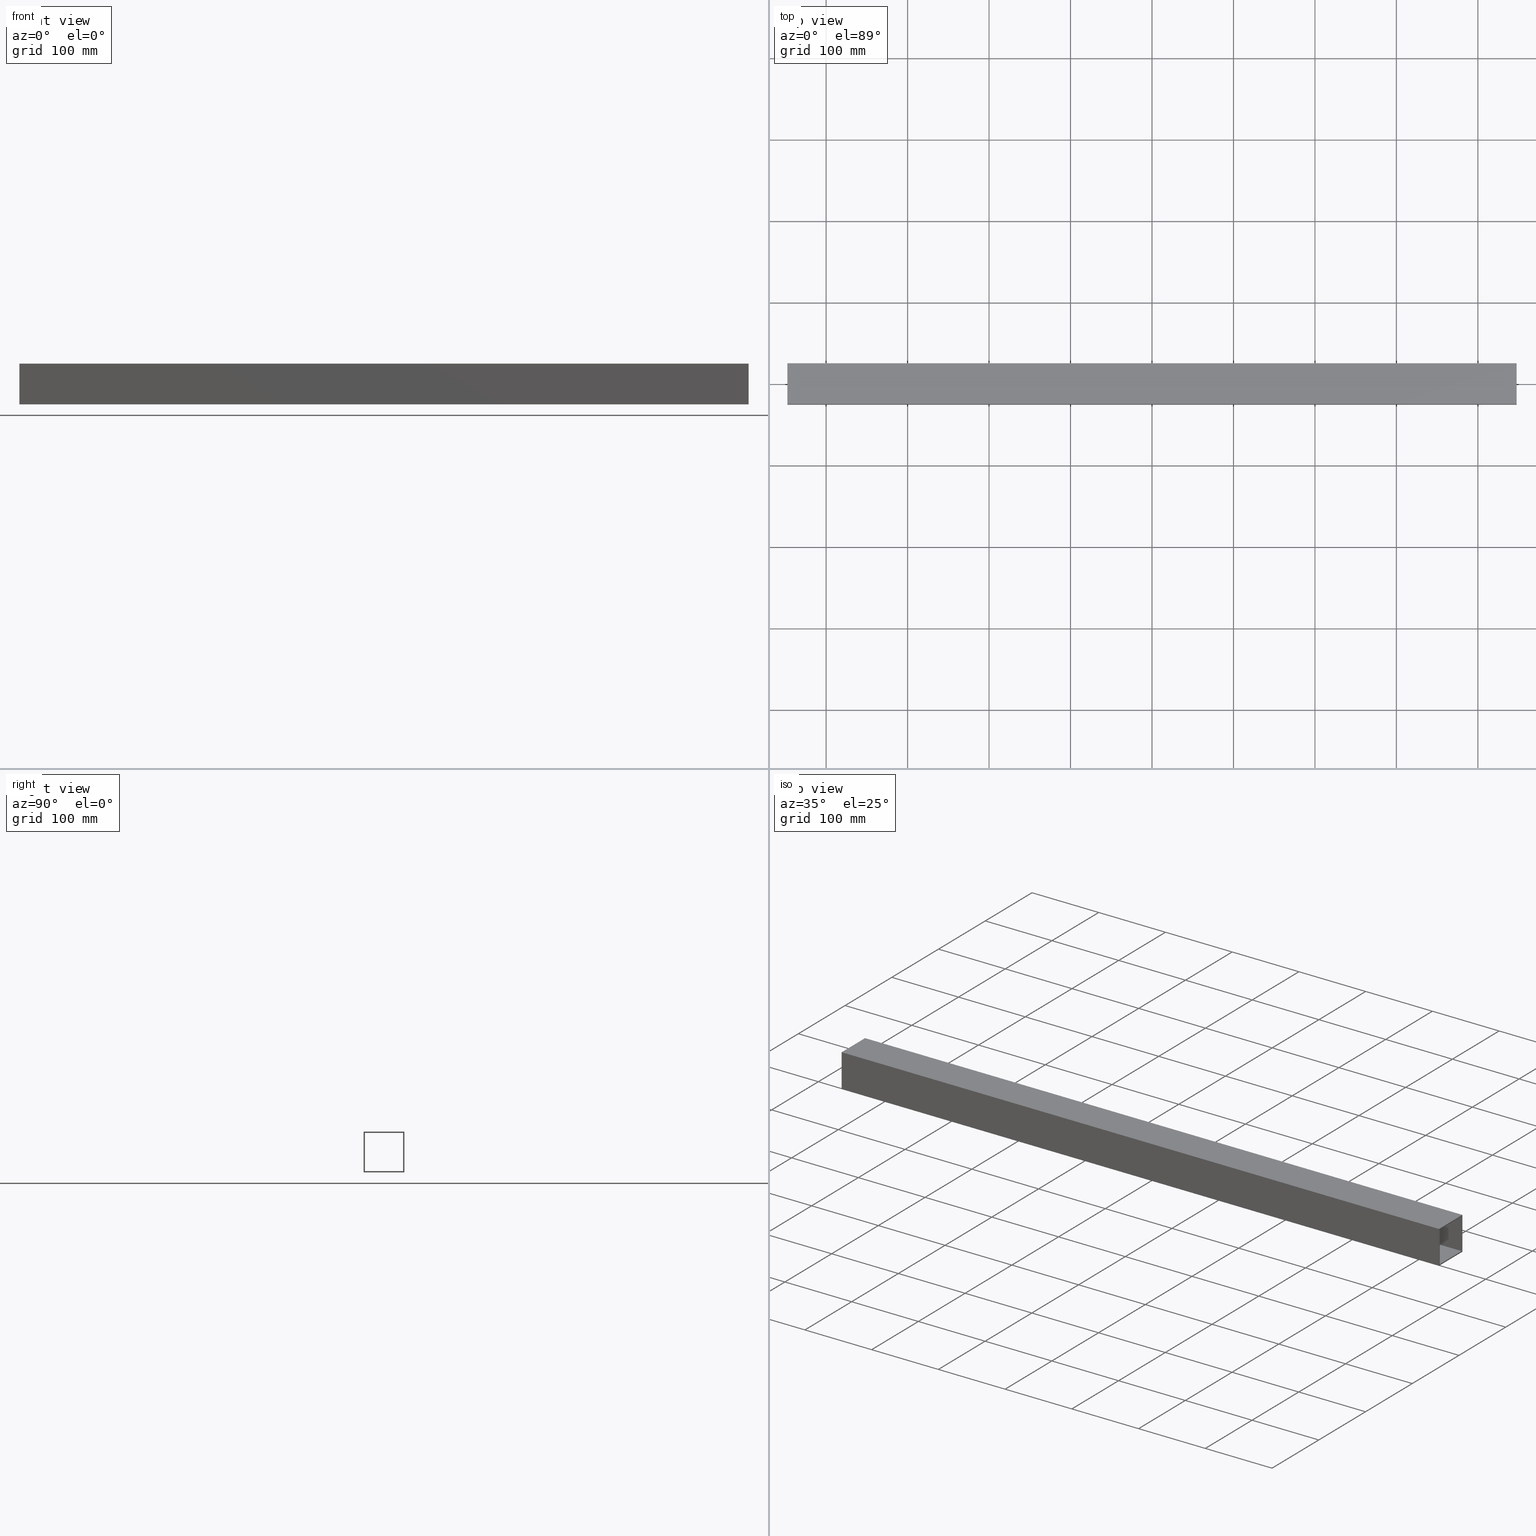
[diagram: canonical four-view strip — front | top / right | iso, engineering-drawing reading convention]
A machine part, canonical four-view strip (front | top / right | iso — engineering-drawing reading convention). The complete STEP part file that produces these views, byte-faithful:
ISO-10303-21;
HEADER;
FILE_DESCRIPTION (( 'STEP AP203' ),
    '1' );
FILE_NAME ('3959-10-15_REV_.step',
    '2025-09-17T09:09:21',
    ( '' ),
    ( '' ),
    'SwSTEP 2.0',
    'SolidWorks 2024',
    '' );
FILE_SCHEMA (( 'CONFIG_CONTROL_DESIGN' ));
ENDSEC;

DATA;
#1 = CARTESIAN_POINT ( 'NONE',  ( -447.5000000000000000, 23.39999999999998437, 23.39999999999991687 ) ) ;
#2 = EDGE_LOOP ( 'NONE', ( #86, #176, #343, #348 ) ) ;
#3 = EDGE_CURVE ( 'NONE', #319, #297, #16, .T. ) ;
#4 = FACE_OUTER_BOUND ( 'NONE', #65, .T. ) ;
#5 = ORIENTED_EDGE ( 'NONE', *, *, #320, .T. ) ;
#6 = DIRECTION ( 'NONE',  ( 0.000000000000000000, 0.000000000000000000, 1.000000000000000000 ) ) ;
#7 = APPLICATION_PROTOCOL_DEFINITION ( 'international standard', 'config_control_design', 1994, #145 ) ;
#8 = ORIENTED_EDGE ( 'NONE', *, *, #140, .F. ) ;
#9 = EDGE_CURVE ( 'NONE', #261, #232, #356, .T. ) ;
#10 = DATE_AND_TIME ( #326, #183 ) ;
#11 = ORIENTED_EDGE ( 'NONE', *, *, #277, .T. ) ;
#12 = EDGE_CURVE ( 'NONE', #158, #178, #101, .T. ) ;
#13 = ORIENTED_EDGE ( 'NONE', *, *, #275, .T. ) ;
#14 = COORDINATED_UNIVERSAL_TIME_OFFSET ( 10, 0, .AHEAD. ) ;
#15 = CC_DESIGN_APPROVAL ( #295, ( #347 ) ) ;
#16 = LINE ( 'NONE', #189, #75 ) ;
#17 = VERTEX_POINT ( 'NONE', #329 ) ;
#18 = CARTESIAN_POINT ( 'NONE',  ( -447.5000000000000000, -23.40000000000001634, 23.40000000000008740 ) ) ;
#19 = CARTESIAN_POINT ( 'NONE',  ( -447.5000000000000000, 23.39999999999981029, -23.40000000000008384 ) ) ;
#20 = VECTOR ( 'NONE', #156, 1000.000000000000000 ) ;
#21 = DIRECTION ( 'NONE',  ( 0.000000000000000000, -3.469446951953613006E-15, -1.000000000000000000 ) ) ;
#22 = EDGE_CURVE ( 'NONE', #262, #286, #72, .T. ) ;
#23 = DIRECTION ( 'NONE',  ( -9.772348340399519194E-31, 3.191891195797322293E-15, 1.000000000000000000 ) ) ;
#24 = CARTESIAN_POINT ( 'NONE',  ( -447.5000000000000000, 25.00000000000000711, 24.99999999999991829 ) ) ;
#25 = LOCAL_TIME ( 19, 9, 21.00000000000000000, #188 ) ;
#26 = DIRECTION ( 'NONE',  ( 3.061616997868382648E-16, -1.000000000000000000, 3.929074539605589797E-15 ) ) ;
#27 = DIRECTION ( 'NONE',  ( 0.000000000000000000, -1.000000000000000000, 3.191891195797322293E-15 ) ) ;
#28 = APPROVAL ( #244, 'UNSPECIFIED' ) ;
#29 = CARTESIAN_POINT ( 'NONE',  ( -447.5000000000000000, 25.00000000000000711, 24.99999999999991829 ) ) ;
#30 = ORIENTED_EDGE ( 'NONE', *, *, #345, .T. ) ;
#31 = DIRECTION ( 'NONE',  ( 0.000000000000000000, -1.000000000000000000, 3.632540612088185364E-15 ) ) ;
#32 = DIRECTION ( 'NONE',  ( 1.000000000000000000, 3.061616997868382648E-16, -0.000000000000000000 ) ) ;
#33 = ORIENTED_EDGE ( 'NONE', *, *, #9, .T. ) ;
#34 = PERSON_AND_ORGANIZATION ( #154, #95 ) ;
#35 = VECTOR ( 'NONE', #363, 1000.000000000000000 ) ;
#36 = PERSON_AND_ORGANIZATION_ROLE ( 'classification_officer' ) ;
#37 = EDGE_LOOP ( 'NONE', ( #147, #58, #121, #239 ) ) ;
#38 = SHAPE_DEFINITION_REPRESENTATION ( #191, #122 ) ;
#39 = CARTESIAN_POINT ( 'NONE',  ( -447.5000000000000000, 23.39999999999998437, 23.39999999999991687 ) ) ;
#40 = APPROVAL_DATE_TIME ( #43, #224 ) ;
#41 = ORIENTED_EDGE ( 'NONE', *, *, #22, .F. ) ;
#42 = CC_DESIGN_PERSON_AND_ORGANIZATION_ASSIGNMENT ( #34, #150, ( #314 ) ) ;
#43 = DATE_AND_TIME ( #298, #299 ) ;
#44 = VECTOR ( 'NONE', #371, 1000.000000000000000 ) ;
#45 = EDGE_LOOP ( 'NONE', ( #133, #325, #292, #236 ) ) ;
#46 = COORDINATED_UNIVERSAL_TIME_OFFSET ( 10, 0, .AHEAD. ) ;
#47 = FACE_BOUND ( 'NONE', #303, .T. ) ;
#48 = ORIENTED_EDGE ( 'NONE', *, *, #368, .F. ) ;
#49 = CARTESIAN_POINT ( 'NONE',  ( -447.5000000000000000, -23.40000000000001634, 23.40000000000008740 ) ) ;
#50 = EDGE_CURVE ( 'NONE', #297, #232, #333, .T. ) ;
#51 = DIRECTION ( 'NONE',  ( 0.000000000000000000, -1.000000000000000000, 3.929074539605588219E-15 ) ) ;
#52 = PLANE ( 'NONE',  #264 ) ;
#53 = LINE ( 'NONE', #144, #175 ) ;
#54 = AXIS2_PLACEMENT_3D ( 'NONE', #222, #23, #309 ) ;
#55 = CARTESIAN_POINT ( 'NONE',  ( -447.5000000000000000, 23.39999999999981029, -23.40000000000008384 ) ) ;
#56 = ADVANCED_FACE ( 'NONE', ( #163 ), #272, .T. ) ;
#57 = CARTESIAN_POINT ( 'NONE',  ( -447.5000000000000000, 25.00000000000000711, 24.99999999999991829 ) ) ;
#58 = ORIENTED_EDGE ( 'NONE', *, *, #126, .F. ) ;
#59 = EDGE_LOOP ( 'NONE', ( #13, #92, #208, #269 ) ) ;
#60 = VECTOR ( 'NONE', #317, 1000.000000000000000 ) ;
#61 = ORIENTED_EDGE ( 'NONE', *, *, #320, .F. ) ;
#62 = CARTESIAN_POINT ( 'NONE',  ( 447.5000000000000000, -23.39999999999992752, -23.39999999999989910 ) ) ;
#63 = ORIENTED_EDGE ( 'NONE', *, *, #99, .T. ) ;
#64 = DIRECTION ( 'NONE',  ( 1.000000000000000000, 3.061616997868382648E-16, -0.000000000000000000 ) ) ;
#65 = EDGE_LOOP ( 'NONE', ( #294, #98, #33, #125 ) ) ;
#66 = CALENDAR_DATE ( 2025, 17, 9 ) ;
#67 = MANIFOLD_SOLID_BREP ( 'Shs-sq edge 50X1.6 UA8007 SHS(1)', #289 ) ;
#68 = DIRECTION ( 'NONE',  ( 0.000000000000000000, 0.000000000000000000, 1.000000000000000000 ) ) ;
#69 = SECURITY_CLASSIFICATION_LEVEL ( 'unclassified' ) ;
#70 = FACE_OUTER_BOUND ( 'NONE', #59, .T. ) ;
#71 = DATE_AND_TIME ( #66, #131 ) ;
#72 = LINE ( 'NONE', #307, #288 ) ;
#73 = DIRECTION ( 'NONE',  ( 0.000000000000000000, -3.469446951953613400E-15, -1.000000000000000000 ) ) ;
#74 = DIRECTION ( 'NONE',  ( 0.000000000000000000, -3.469446951953611033E-15, -1.000000000000000000 ) ) ;
#75 = VECTOR ( 'NONE', #73, 1000.000000000000000 ) ;
#76 = DIRECTION ( 'NONE',  ( 0.000000000000000000, -1.000000000000000000, 3.816391647148972452E-15 ) ) ;
#77 = DIRECTION ( 'NONE',  ( 3.061616997868382648E-16, -1.000000000000000000, 3.706674093967536473E-15 ) ) ;
#78 = CC_DESIGN_PERSON_AND_ORGANIZATION_ASSIGNMENT ( #301, #181, ( #347 ) ) ;
#79 = FACE_OUTER_BOUND ( 'NONE', #230, .T. ) ;
#80 = DIRECTION ( 'NONE',  ( 1.000000000000000000, 3.061616997868382648E-16, -0.000000000000000000 ) ) ;
#81 = AXIS2_PLACEMENT_3D ( 'NONE', #83, #256, #201 ) ;
#82 = LINE ( 'NONE', #227, #253 ) ;
#83 = CARTESIAN_POINT ( 'NONE',  ( -447.5000000000000000, -25.00000000000003553, 25.00000000000011013 ) ) ;
#84 = ORIENTED_EDGE ( 'NONE', *, *, #345, .F. ) ;
#85 =( NAMED_UNIT ( * ) SI_UNIT ( $, .STERADIAN. ) SOLID_ANGLE_UNIT ( ) );
#86 = ORIENTED_EDGE ( 'NONE', *, *, #287, .T. ) ;
#87 = VECTOR ( 'NONE', #212, 1000.000000000000000 ) ;
#88 = VECTOR ( 'NONE', #284, 1000.000000000000000 ) ;
#89 = MECHANICAL_CONTEXT ( 'NONE', #372, 'mechanical' ) ;
#90 = VERTEX_POINT ( 'NONE', #184 ) ;
#91 = ADVANCED_FACE ( 'NONE', ( #136, #47 ), #268, .T. ) ;
#92 = ORIENTED_EDGE ( 'NONE', *, *, #287, .F. ) ;
#93 = CC_DESIGN_PERSON_AND_ORGANIZATION_ASSIGNMENT ( #353, #273, ( #148 ) ) ;
#94 = CARTESIAN_POINT ( 'NONE',  ( 447.5000000000000000, 0.000000000000000000, 0.000000000000000000 ) ) ;
#95 = ORGANIZATION ( 'UNSPECIFIED', 'UNSPECIFIED', '' ) ;
#96 = DIRECTION ( 'NONE',  ( 0.000000000000000000, -1.000000000000000000, 3.816391647148972452E-15 ) ) ;
#97 = APPROVAL_ROLE ( '' ) ;
#98 = ORIENTED_EDGE ( 'NONE', *, *, #194, .F. ) ;
#99 = EDGE_CURVE ( 'NONE', #118, #286, #351, .T. ) ;
#100 = DATE_AND_TIME ( #238, #310 ) ;
#101 = LINE ( 'NONE', #39, #20 ) ;
#102 = VECTOR ( 'NONE', #27, 1000.000000000000000 ) ;
#103 = VERTEX_POINT ( 'NONE', #248 ) ;
#104 = DIRECTION ( 'NONE',  ( 0.000000000000000000, -1.000000000000000000, 3.632540612088185364E-15 ) ) ;
#105 = CARTESIAN_POINT ( 'NONE',  ( -447.5000000000000000, 23.39999999999998437, 23.39999999999991687 ) ) ;
#106 = VECTOR ( 'NONE', #80, 1000.000000000000000 ) ;
#107 = CARTESIAN_POINT ( 'NONE',  ( 447.5000000000000000, 23.40000000000025793, 23.39999999999991687 ) ) ;
#108 = FACE_OUTER_BOUND ( 'NONE', #2, .T. ) ;
#109 = DIRECTION ( 'NONE',  ( 1.000000000000000000, 3.061616997868382648E-16, -0.000000000000000000 ) ) ;
#110 = ADVANCED_FACE ( 'NONE', ( #70, #190 ), #185, .F. ) ;
#111 = LINE ( 'NONE', #115, #102 ) ;
#112 = VECTOR ( 'NONE', #302, 1000.000000000000000 ) ;
#113 = VECTOR ( 'NONE', #296, 1000.000000000000000 ) ;
#114 = ADVANCED_FACE ( 'NONE', ( #280 ), #52, .F. ) ;
#115 = CARTESIAN_POINT ( 'NONE',  ( 447.5000000000000000, 25.00000000000011013, -25.00000000000009237 ) ) ;
#116 = VERTEX_POINT ( 'NONE', #335 ) ;
#117 = CARTESIAN_POINT ( 'NONE',  ( -447.5000000000000000, 24.99999999999983658, -25.00000000000009237 ) ) ;
#118 = VERTEX_POINT ( 'NONE', #49 ) ;
#119 = DIRECTION ( 'NONE',  ( 1.000000000000000000, 0.000000000000000000, 0.000000000000000000 ) ) ;
#120 = CC_DESIGN_DATE_AND_TIME_ASSIGNMENT ( #71, #304, ( #347 ) ) ;
#121 = ORIENTED_EDGE ( 'NONE', *, *, #3, .F. ) ;
#122 = ADVANCED_BREP_SHAPE_REPRESENTATION ( '3959-10-15_REV_', ( #67, #306 ), #258 ) ;
#123 =( NAMED_UNIT ( * ) PLANE_ANGLE_UNIT ( ) SI_UNIT ( $, .RADIAN. ) );
#124 = ORIENTED_EDGE ( 'NONE', *, *, #99, .F. ) ;
#125 = ORIENTED_EDGE ( 'NONE', *, *, #354, .T. ) ;
#126 = EDGE_CURVE ( 'NONE', #297, #103, #250, .T. ) ;
#127 = PERSON_AND_ORGANIZATION ( #154, #95 ) ;
#128 = VERTEX_POINT ( 'NONE', #139 ) ;
#129 = AXIS2_PLACEMENT_3D ( 'NONE', #216, #246, #96 ) ;
#130 = CC_DESIGN_SECURITY_CLASSIFICATION ( #355, ( #148 ) ) ;
#131 = LOCAL_TIME ( 19, 9, 21.00000000000000000, #155 ) ;
#132 = APPROVAL_STATUS ( 'not_yet_approved' ) ;
#133 = ORIENTED_EDGE ( 'NONE', *, *, #167, .F. ) ;
#134 = DIRECTION ( 'NONE',  ( 0.000000000000000000, -1.000000000000000000, 3.929074539605588219E-15 ) ) ;
#135 = COORDINATED_UNIVERSAL_TIME_OFFSET ( 10, 0, .AHEAD. ) ;
#136 = FACE_OUTER_BOUND ( 'NONE', #205, .T. ) ;
#137 = CC_DESIGN_APPROVAL ( #224, ( #148 ) ) ;
#138 = CARTESIAN_POINT ( 'NONE',  ( -447.5000000000000000, -25.00000000000003553, 25.00000000000011013 ) ) ;
#139 = CARTESIAN_POINT ( 'NONE',  ( 447.5000000000000000, 25.00000000000028066, 24.99999999999991829 ) ) ;
#140 = EDGE_CURVE ( 'NONE', #286, #331, #53, .T. ) ;
#141 = FACE_OUTER_BOUND ( 'NONE', #45, .T. ) ;
#142 = PLANE ( 'NONE',  #54 ) ;
#143 = APPROVAL_PERSON_ORGANIZATION ( #211, #224, #213 ) ;
#144 = CARTESIAN_POINT ( 'NONE',  ( -447.5000000000000000, -23.40000000000020108, -23.39999999999989910 ) ) ;
#145 = APPLICATION_CONTEXT ( 'configuration controlled 3d designs of mechanical parts and assemblies' ) ;
#146 = CARTESIAN_POINT ( 'NONE',  ( 447.5000000000000000, 23.40000000000025793, 23.39999999999991687 ) ) ;
#147 = ORIENTED_EDGE ( 'NONE', *, *, #352, .T. ) ;
#148 = PRODUCT_DEFINITION_FORMATION_WITH_SPECIFIED_SOURCE ( 'ANY', '', #314, .NOT_KNOWN. ) ;
#149 = ORIENTED_EDGE ( 'NONE', *, *, #370, .T. ) ;
#150 = PERSON_AND_ORGANIZATION_ROLE ( 'design_owner' ) ;
#151 = ORIENTED_EDGE ( 'NONE', *, *, #242, .F. ) ;
#152 = PERSON_AND_ORGANIZATION ( #154, #95 ) ;
#153 = ORIENTED_EDGE ( 'NONE', *, *, #237, .F. ) ;
#154 = PERSON ( 'UNSPECIFIED', 'UNSPECIFIED', 'UNSPECIFIED', ('UNSPECIFIED'), ('UNSPECIFIED'), ('UNSPECIFIED') ) ;
#155 = COORDINATED_UNIVERSAL_TIME_OFFSET ( 10, 0, .AHEAD. ) ;
#156 = DIRECTION ( 'NONE',  ( 1.000000000000000000, 3.061616997868382648E-16, -0.000000000000000000 ) ) ;
#157 = DESIGN_CONTEXT ( 'detailed design', #145, 'design' ) ;
#158 = VERTEX_POINT ( 'NONE', #223 ) ;
#159 = CC_DESIGN_DATE_AND_TIME_ASSIGNMENT ( #271, #330, ( #355 ) ) ;
#160 = ADVANCED_FACE ( 'NONE', ( #283 ), #192, .F. ) ;
#161 = PERSON_AND_ORGANIZATION_ROLE ( 'design_supplier' ) ;
#162 = ORIENTED_EDGE ( 'NONE', *, *, #50, .T. ) ;
#163 = FACE_OUTER_BOUND ( 'NONE', #259, .T. ) ;
#164 = CARTESIAN_POINT ( 'NONE',  ( -447.5000000000000000, 24.99999999999983658, -25.00000000000009237 ) ) ;
#165 = VECTOR ( 'NONE', #285, 1000.000000000000000 ) ;
#166 = DIRECTION ( 'NONE',  ( 3.061616997868382648E-16, -1.000000000000000000, 3.469446951953613006E-15 ) ) ;
#167 = EDGE_CURVE ( 'NONE', #178, #116, #169, .T. ) ;
#168 = DIRECTION ( 'NONE',  ( 0.000000000000000000, -3.929074539605589797E-15, -1.000000000000000000 ) ) ;
#169 = LINE ( 'NONE', #107, #60 ) ;
#170 = CARTESIAN_POINT ( 'NONE',  ( -447.5000000000000000, -23.40000000000001634, 23.40000000000008740 ) ) ;
#171 = CARTESIAN_POINT ( 'NONE',  ( -447.5000000000000000, -25.00000000000003553, 25.00000000000011013 ) ) ;
#172 = LINE ( 'NONE', #231, #291 ) ;
#173 = ORIENTED_EDGE ( 'NONE', *, *, #3, .T. ) ;
#174 = DIRECTION ( 'NONE',  ( 0.000000000000000000, -1.000000000000000000, 3.632540612088185364E-15 ) ) ;
#175 = VECTOR ( 'NONE', #366, 1000.000000000000000 ) ;
#176 = ORIENTED_EDGE ( 'NONE', *, *, #354, .F. ) ;
#177 = APPLICATION_PROTOCOL_DEFINITION ( 'international standard', 'config_control_design', 1994, #372 ) ;
#178 = VERTEX_POINT ( 'NONE', #365 ) ;
#179 = CARTESIAN_POINT ( 'NONE',  ( 447.5000000000000000, 23.40000000000008384, -23.40000000000008384 ) ) ;
#180 = VERTEX_POINT ( 'NONE', #254 ) ;
#181 = PERSON_AND_ORGANIZATION_ROLE ( 'creator' ) ;
#182 = EDGE_CURVE ( 'NONE', #128, #90, #281, .T. ) ;
#183 = LOCAL_TIME ( 19, 9, 21.00000000000000000, #46 ) ;
#184 = CARTESIAN_POINT ( 'NONE',  ( 447.5000000000000000, -24.99999999999976197, 25.00000000000011013 ) ) ;
#185 = PLANE ( 'NONE',  #316 ) ;
#186 = ADVANCED_FACE ( 'NONE', ( #79 ), #252, .T. ) ;
#187 = DIRECTION ( 'NONE',  ( 0.000000000000000000, -1.000000000000000000, 3.191891195797322293E-15 ) ) ;
#188 = COORDINATED_UNIVERSAL_TIME_OFFSET ( 10, 0, .AHEAD. ) ;
#189 = CARTESIAN_POINT ( 'NONE',  ( -447.5000000000000000, 25.00000000000000711, 24.99999999999991829 ) ) ;
#190 = FACE_BOUND ( 'NONE', #322, .T. ) ;
#191 = PRODUCT_DEFINITION_SHAPE ( 'NONE', 'NONE',  #347 ) ;
#192 = PLANE ( 'NONE',  #220 ) ;
#193 = DIRECTION ( 'NONE',  ( -1.202932139634835836E-30, 3.929074539605588219E-15, 1.000000000000000000 ) ) ;
#194 = EDGE_CURVE ( 'NONE', #261, #90, #315, .T. ) ;
#195 = CARTESIAN_POINT ( 'NONE',  ( -447.5000000000000000, 25.00000000000000711, 24.99999999999991829 ) ) ;
#196 = LINE ( 'NONE', #195, #204 ) ;
#197 = ADVANCED_FACE ( 'NONE', ( #219 ), #251, .F. ) ;
#198 = LINE ( 'NONE', #55, #35 ) ;
#199 = DIRECTION ( 'NONE',  ( 0.000000000000000000, -1.000000000000000000, 3.929074539605588219E-15 ) ) ;
#200 = ORIENTED_EDGE ( 'NONE', *, *, #194, .T. ) ;
#201 = DIRECTION ( 'NONE',  ( 0.000000000000000000, -3.469446951953611033E-15, -1.000000000000000000 ) ) ;
#202 = ADVANCED_FACE ( 'NONE', ( #108 ), #142, .F. ) ;
#203 = ORIENTED_EDGE ( 'NONE', *, *, #22, .T. ) ;
#204 = VECTOR ( 'NONE', #109, 1000.000000000000000 ) ;
#205 = EDGE_LOOP ( 'NONE', ( #358, #276, #173, #162 ) ) ;
#206 = ORIENTED_EDGE ( 'NONE', *, *, #368, .T. ) ;
#207 = CARTESIAN_POINT ( 'NONE',  ( -447.5000000000000000, 23.39999999999998437, 23.39999999999991687 ) ) ;
#208 = ORIENTED_EDGE ( 'NONE', *, *, #352, .F. ) ;
#209 = DIRECTION ( 'NONE',  ( -1.000000000000000000, -0.000000000000000000, 0.000000000000000000 ) ) ;
#210 = APPROVAL_ROLE ( '' ) ;
#211 = PERSON_AND_ORGANIZATION ( #154, #95 ) ;
#212 = DIRECTION ( 'NONE',  ( 0.000000000000000000, -3.469446951953611033E-15, -1.000000000000000000 ) ) ;
#213 = APPROVAL_ROLE ( '' ) ;
#214 = CC_DESIGN_PERSON_AND_ORGANIZATION_ASSIGNMENT ( #266, #161, ( #148 ) ) ;
#215 = VECTOR ( 'NONE', #74, 1000.000000000000000 ) ;
#216 = CARTESIAN_POINT ( 'NONE',  ( -447.5000000000000000, 25.00000000000000711, 24.99999999999991829 ) ) ;
#217 = LINE ( 'NONE', #334, #215 ) ;
#218 = ADVANCED_FACE ( 'NONE', ( #141 ), #339, .T. ) ;
#219 = FACE_OUTER_BOUND ( 'NONE', #265, .T. ) ;
#220 = AXIS2_PLACEMENT_3D ( 'NONE', #24, #166, #21 ) ;
#221 = CC_DESIGN_PERSON_AND_ORGANIZATION_ASSIGNMENT ( #360, #36, ( #355 ) ) ;
#222 = CARTESIAN_POINT ( 'NONE',  ( -447.5000000000000000, 24.99999999999983658, -25.00000000000009237 ) ) ;
#223 = CARTESIAN_POINT ( 'NONE',  ( -447.5000000000000000, 23.39999999999998437, 23.39999999999991687 ) ) ;
#224 = APPROVAL ( #247, 'UNSPECIFIED' ) ;
#225 = DIRECTION ( 'NONE',  ( 0.000000000000000000, -3.706674093967536473E-15, -1.000000000000000000 ) ) ;
#226 = VECTOR ( 'NONE', #76, 1000.000000000000000 ) ;
#227 = CARTESIAN_POINT ( 'NONE',  ( -447.5000000000000000, -23.40000000000001634, 23.40000000000008740 ) ) ;
#228 = ORIENTED_EDGE ( 'NONE', *, *, #364, .F. ) ;
#229 = LINE ( 'NONE', #207, #249 ) ;
#230 = EDGE_LOOP ( 'NONE', ( #48, #151, #203, #346 ) ) ;
#231 = CARTESIAN_POINT ( 'NONE',  ( -447.5000000000000000, -25.00000000000020961, -24.99999999999993250 ) ) ;
#232 = VERTEX_POINT ( 'NONE', #340 ) ;
#233 = CARTESIAN_POINT ( 'NONE',  ( 447.5000000000000000, -23.39999999999974278, 23.40000000000008740 ) ) ;
#234 = VECTOR ( 'NONE', #187, 1000.000000000000000 ) ;
#235 = CC_DESIGN_APPROVAL ( #28, ( #355 ) ) ;
#236 = ORIENTED_EDGE ( 'NONE', *, *, #242, .T. ) ;
#237 = EDGE_CURVE ( 'NONE', #319, #128, #196, .T. ) ;
#238 = CALENDAR_DATE ( 2025, 17, 9 ) ;
#239 = ORIENTED_EDGE ( 'NONE', *, *, #237, .T. ) ;
#240 = CARTESIAN_POINT ( 'NONE',  ( -447.5000000000000000, -2.740147213092202348E-13, 0.000000000000000000 ) ) ;
#241 = APPROVAL_PERSON_ORGANIZATION ( #127, #295, #97 ) ;
#242 = EDGE_CURVE ( 'NONE', #262, #116, #198, .T. ) ;
#243 = ORIENTED_EDGE ( 'NONE', *, *, #364, .T. ) ;
#244 = APPROVAL_STATUS ( 'not_yet_approved' ) ;
#245 = PRODUCT_RELATED_PRODUCT_CATEGORY ( 'detail', '', ( #314 ) ) ;
#246 = DIRECTION ( 'NONE',  ( -1.168432953743420880E-30, 3.816391647148972452E-15, 1.000000000000000000 ) ) ;
#247 = APPROVAL_STATUS ( 'not_yet_approved' ) ;
#248 = CARTESIAN_POINT ( 'NONE',  ( 447.5000000000000000, 25.00000000000011013, -25.00000000000009237 ) ) ;
#249 = VECTOR ( 'NONE', #174, 1000.000000000000000 ) ;
#250 = LINE ( 'NONE', #282, #336 ) ;
#251 = PLANE ( 'NONE',  #321 ) ;
#252 = PLANE ( 'NONE',  #270 ) ;
#253 = VECTOR ( 'NONE', #64, 1000.000000000000000 ) ;
#254 = CARTESIAN_POINT ( 'NONE',  ( 447.5000000000000000, -23.39999999999974278, 23.40000000000008740 ) ) ;
#255 = DIRECTION ( 'NONE',  ( 1.000000000000000000, 3.061616997868382648E-16, -0.000000000000000000 ) ) ;
#256 = DIRECTION ( 'NONE',  ( 3.061616997868382648E-16, -1.000000000000000000, 3.469446951953611033E-15 ) ) ;
#257 = LINE ( 'NONE', #1, #113 ) ;
#258 =( GEOMETRIC_REPRESENTATION_CONTEXT ( 3 ) GLOBAL_UNCERTAINTY_ASSIGNED_CONTEXT ( ( #312 ) ) GLOBAL_UNIT_ASSIGNED_CONTEXT ( ( #349, #123, #85 ) ) REPRESENTATION_CONTEXT ( 'NONE', 'WORKASPACE' ) );
#259 = EDGE_LOOP ( 'NONE', ( #350, #153, #149, #200 ) ) ;
#260 = CARTESIAN_POINT ( 'NONE',  ( 447.5000000000000000, 25.00000000000028066, 24.99999999999991829 ) ) ;
#261 = VERTEX_POINT ( 'NONE', #171 ) ;
#262 = VERTEX_POINT ( 'NONE', #19 ) ;
#263 = LINE ( 'NONE', #260, #44 ) ;
#264 = AXIS2_PLACEMENT_3D ( 'NONE', #170, #26, #168 ) ;
#265 = EDGE_LOOP ( 'NONE', ( #5, #228, #305, #324 ) ) ;
#266 = PERSON_AND_ORGANIZATION ( #154, #95 ) ;
#267 = APPROVAL_DATE_TIME ( #10, #28 ) ;
#268 = PLANE ( 'NONE',  #278 ) ;
#269 = ORIENTED_EDGE ( 'NONE', *, *, #182, .T. ) ;
#270 = AXIS2_PLACEMENT_3D ( 'NONE', #369, #193, #51 ) ;
#271 = DATE_AND_TIME ( #328, #25 ) ;
#272 = PLANE ( 'NONE',  #129 ) ;
#273 = PERSON_AND_ORGANIZATION_ROLE ( 'creator' ) ;
#274 = DIRECTION ( 'NONE',  ( -1.000000000000000000, -0.000000000000000000, 0.000000000000000000 ) ) ;
#275 = EDGE_CURVE ( 'NONE', #90, #17, #217, .T. ) ;
#276 = ORIENTED_EDGE ( 'NONE', *, *, #370, .F. ) ;
#277 = EDGE_CURVE ( 'NONE', #158, #118, #229, .T. ) ;
#278 = AXIS2_PLACEMENT_3D ( 'NONE', #240, #274, #68 ) ;
#279 = EDGE_CURVE ( 'NONE', #158, #262, #257, .T. ) ;
#280 = FACE_OUTER_BOUND ( 'NONE', #308, .T. ) ;
#281 = LINE ( 'NONE', #313, #226 ) ;
#282 = CARTESIAN_POINT ( 'NONE',  ( -447.5000000000000000, 24.99999999999983658, -25.00000000000009237 ) ) ;
#283 = FACE_OUTER_BOUND ( 'NONE', #37, .T. ) ;
#284 = DIRECTION ( 'NONE',  ( 0.000000000000000000, -1.000000000000000000, 3.816391647148972452E-15 ) ) ;
#285 = DIRECTION ( 'NONE',  ( 0.000000000000000000, -3.929074539605589797E-15, -1.000000000000000000 ) ) ;
#286 = VERTEX_POINT ( 'NONE', #290 ) ;
#287 = EDGE_CURVE ( 'NONE', #103, #17, #111, .T. ) ;
#288 = VECTOR ( 'NONE', #134, 1000.000000000000000 ) ;
#289 = CLOSED_SHELL ( 'NONE', ( #197, #114, #186, #359, #56, #160, #202, #218, #91, #110 ) ) ;
#290 = CARTESIAN_POINT ( 'NONE',  ( -447.5000000000000000, -23.40000000000020108, -23.39999999999989910 ) ) ;
#291 = VECTOR ( 'NONE', #32, 1000.000000000000000 ) ;
#292 = ORIENTED_EDGE ( 'NONE', *, *, #279, .T. ) ;
#293 = LINE ( 'NONE', #233, #165 ) ;
#294 = ORIENTED_EDGE ( 'NONE', *, *, #275, .F. ) ;
#295 = APPROVAL ( #132, 'UNSPECIFIED' ) ;
#296 = DIRECTION ( 'NONE',  ( 0.000000000000000000, -3.706674093967536473E-15, -1.000000000000000000 ) ) ;
#297 = VERTEX_POINT ( 'NONE', #117 ) ;
#298 = CALENDAR_DATE ( 2025, 17, 9 ) ;
#299 = LOCAL_TIME ( 19, 9, 21.00000000000000000, #14 ) ;
#300 = ORIENTED_EDGE ( 'NONE', *, *, #279, .F. ) ;
#301 = PERSON_AND_ORGANIZATION ( #154, #95 ) ;
#302 = DIRECTION ( 'NONE',  ( 0.000000000000000000, -3.929074539605589797E-15, -1.000000000000000000 ) ) ;
#303 = EDGE_LOOP ( 'NONE', ( #11, #63, #41, #300 ) ) ;
#304 = DATE_TIME_ROLE ( 'creation_date' ) ;
#305 = ORIENTED_EDGE ( 'NONE', *, *, #277, .F. ) ;
#306 = AXIS2_PLACEMENT_3D ( 'NONE', #323, #6, #119 ) ;
#307 = CARTESIAN_POINT ( 'NONE',  ( -447.5000000000000000, 23.39999999999981029, -23.40000000000008384 ) ) ;
#308 = EDGE_LOOP ( 'NONE', ( #30, #8, #124, #243 ) ) ;
#309 = DIRECTION ( 'NONE',  ( 0.000000000000000000, -1.000000000000000000, 3.191891195797322293E-15 ) ) ;
#310 = LOCAL_TIME ( 19, 9, 21.00000000000000000, #135 ) ;
#311 = DIRECTION ( 'NONE',  ( -1.112144808341640593E-30, 3.632540612088185364E-15, 1.000000000000000000 ) ) ;
#312 = UNCERTAINTY_MEASURE_WITH_UNIT (LENGTH_MEASURE( 1.000000000000000082E-05 ), #349, 'distance_accuracy_value', 'NONE');
#313 = CARTESIAN_POINT ( 'NONE',  ( 447.5000000000000000, 25.00000000000028066, 24.99999999999991829 ) ) ;
#314 = PRODUCT ( '3959-10-15_REV_', '3959-10-15_REV_', '', ( #89 ) ) ;
#315 = LINE ( 'NONE', #138, #106 ) ;
#316 = AXIS2_PLACEMENT_3D ( 'NONE', #94, #209, #367 ) ;
#317 = DIRECTION ( 'NONE',  ( 0.000000000000000000, -3.706674093967536473E-15, -1.000000000000000000 ) ) ;
#318 = LINE ( 'NONE', #29, #88 ) ;
#319 = VERTEX_POINT ( 'NONE', #57 ) ;
#320 = EDGE_CURVE ( 'NONE', #178, #180, #357, .T. ) ;
#321 = AXIS2_PLACEMENT_3D ( 'NONE', #105, #311, #104 ) ;
#322 = EDGE_LOOP ( 'NONE', ( #61, #361, #206, #84 ) ) ;
#323 = CARTESIAN_POINT ( 'NONE',  ( 0.000000000000000000, 0.000000000000000000, 0.000000000000000000 ) ) ;
#324 = ORIENTED_EDGE ( 'NONE', *, *, #12, .T. ) ;
#325 = ORIENTED_EDGE ( 'NONE', *, *, #12, .F. ) ;
#326 = CALENDAR_DATE ( 2025, 17, 9 ) ;
#327 = CARTESIAN_POINT ( 'NONE',  ( -447.5000000000000000, -25.00000000000003553, 25.00000000000011013 ) ) ;
#328 = CALENDAR_DATE ( 2025, 17, 9 ) ;
#329 = CARTESIAN_POINT ( 'NONE',  ( 447.5000000000000000, -24.99999999999993605, -24.99999999999993250 ) ) ;
#330 = DATE_TIME_ROLE ( 'classification_date' ) ;
#331 = VERTEX_POINT ( 'NONE', #62 ) ;
#332 = APPROVAL_DATE_TIME ( #100, #295 ) ;
#333 = LINE ( 'NONE', #164, #234 ) ;
#334 = CARTESIAN_POINT ( 'NONE',  ( 447.5000000000000000, -24.99999999999976197, 25.00000000000011013 ) ) ;
#335 = CARTESIAN_POINT ( 'NONE',  ( 447.5000000000000000, 23.40000000000008384, -23.40000000000008384 ) ) ;
#336 = VECTOR ( 'NONE', #255, 1000.000000000000000 ) ;
#337 = VECTOR ( 'NONE', #31, 1000.000000000000000 ) ;
#338 = APPROVAL_PERSON_ORGANIZATION ( #152, #28, #210 ) ;
#339 = PLANE ( 'NONE',  #362 ) ;
#340 = CARTESIAN_POINT ( 'NONE',  ( -447.5000000000000000, -25.00000000000020961, -24.99999999999993250 ) ) ;
#341 = CARTESIAN_POINT ( 'NONE',  ( -447.5000000000000000, 23.39999999999998437, 23.39999999999991687 ) ) ;
#342 = LINE ( 'NONE', #179, #373 ) ;
#343 = ORIENTED_EDGE ( 'NONE', *, *, #50, .F. ) ;
#344 = PLANE ( 'NONE',  #81 ) ;
#345 = EDGE_CURVE ( 'NONE', #180, #331, #293, .T. ) ;
#346 = ORIENTED_EDGE ( 'NONE', *, *, #140, .T. ) ;
#347 = PRODUCT_DEFINITION ( 'UNKNOWN', '', #148, #157 ) ;
#348 = ORIENTED_EDGE ( 'NONE', *, *, #126, .T. ) ;
#349 =( LENGTH_UNIT ( ) NAMED_UNIT ( * ) SI_UNIT ( .MILLI., .METRE. ) );
#350 = ORIENTED_EDGE ( 'NONE', *, *, #182, .F. ) ;
#351 = LINE ( 'NONE', #18, #112 ) ;
#352 = EDGE_CURVE ( 'NONE', #128, #103, #263, .T. ) ;
#353 = PERSON_AND_ORGANIZATION ( #154, #95 ) ;
#354 = EDGE_CURVE ( 'NONE', #232, #17, #172, .T. ) ;
#355 = SECURITY_CLASSIFICATION ( '', '', #69 ) ;
#356 = LINE ( 'NONE', #327, #87 ) ;
#357 = LINE ( 'NONE', #146, #337 ) ;
#358 = ORIENTED_EDGE ( 'NONE', *, *, #9, .F. ) ;
#359 = ADVANCED_FACE ( 'NONE', ( #4 ), #344, .T. ) ;
#360 = PERSON_AND_ORGANIZATION ( #154, #95 ) ;
#361 = ORIENTED_EDGE ( 'NONE', *, *, #167, .T. ) ;
#362 = AXIS2_PLACEMENT_3D ( 'NONE', #341, #77, #225 ) ;
#363 = DIRECTION ( 'NONE',  ( 1.000000000000000000, 3.061616997868382648E-16, -0.000000000000000000 ) ) ;
#364 = EDGE_CURVE ( 'NONE', #118, #180, #82, .T. ) ;
#365 = CARTESIAN_POINT ( 'NONE',  ( 447.5000000000000000, 23.40000000000025793, 23.39999999999991687 ) ) ;
#366 = DIRECTION ( 'NONE',  ( 1.000000000000000000, 3.061616997868382648E-16, -0.000000000000000000 ) ) ;
#367 = DIRECTION ( 'NONE',  ( 0.000000000000000000, 0.000000000000000000, 1.000000000000000000 ) ) ;
#368 = EDGE_CURVE ( 'NONE', #116, #331, #342, .T. ) ;
#369 = CARTESIAN_POINT ( 'NONE',  ( -447.5000000000000000, 23.39999999999981029, -23.40000000000008384 ) ) ;
#370 = EDGE_CURVE ( 'NONE', #319, #261, #318, .T. ) ;
#371 = DIRECTION ( 'NONE',  ( 0.000000000000000000, -3.469446951953613400E-15, -1.000000000000000000 ) ) ;
#372 = APPLICATION_CONTEXT ( 'configuration controlled 3d designs of mechanical parts and assemblies' ) ;
#373 = VECTOR ( 'NONE', #199, 1000.000000000000000 ) ;
ENDSEC;
END-ISO-10303-21;
